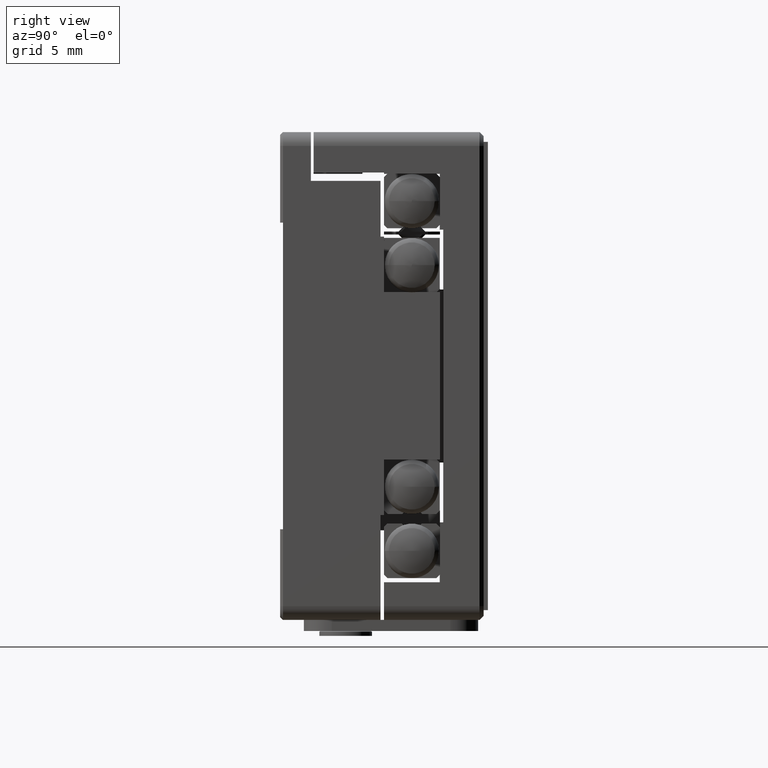
[diagram: clean part render]
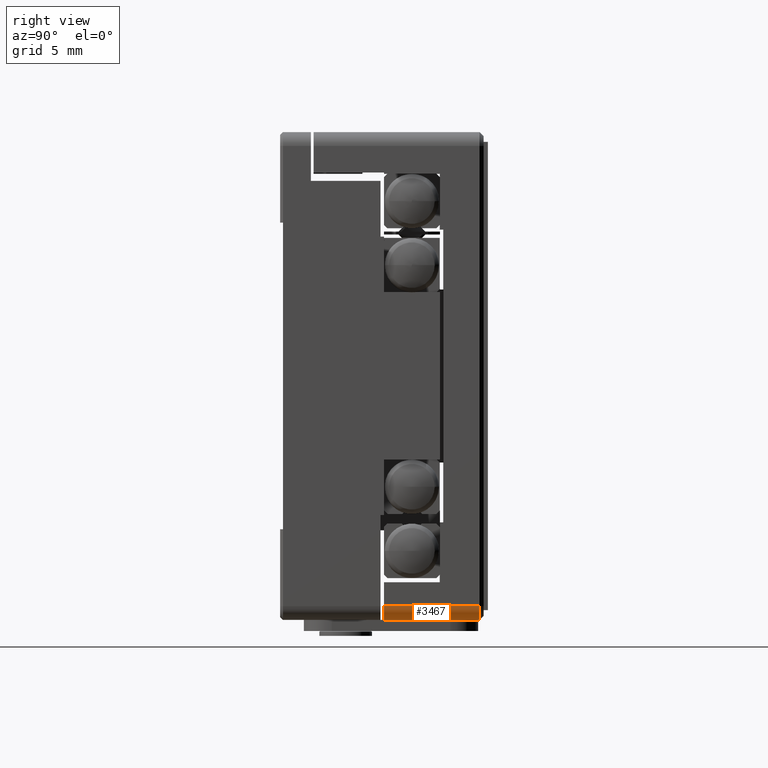
[diagram: same view with one face highlighted and labeled with its STEP entity id]
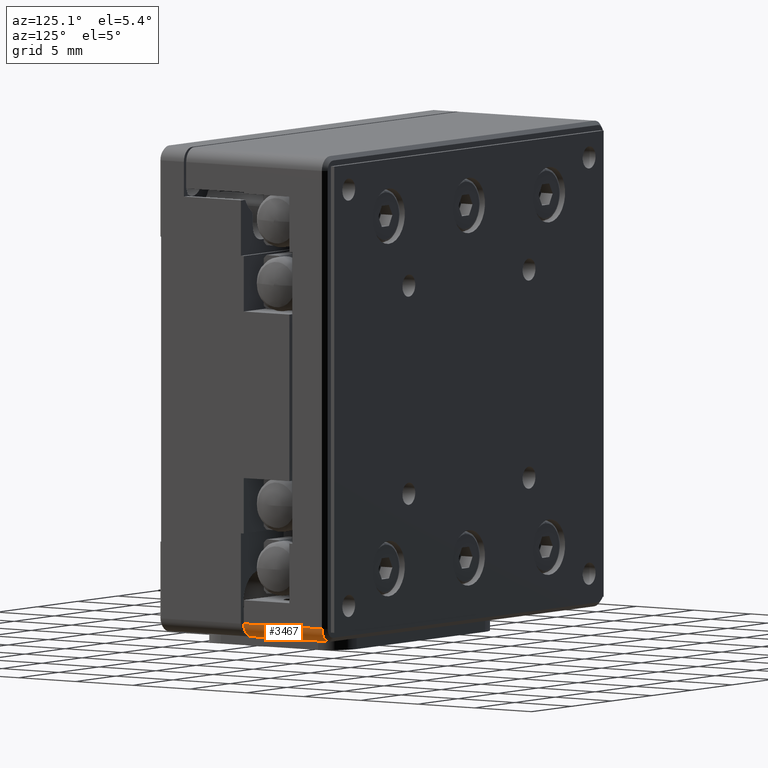
[diagram: same view with one face highlighted and labeled with its STEP entity id]
A machine part, right view. The second image highlights one B-rep face of the part: STEP entity #3467.
A second angle (auxiliary view) of the same face is appended — the face is thin or edge-on in the first view.
In plain terms, the highlighted cylindrical surface (edge-blend (fillet) strip) has radius 1 mm, axis along (0, -1, 0).
Its self-contained STEP definition (entity closure, byte-faithful):
#736 = ORIENTED_EDGE ( 'NONE', *, *, #8315, .F. ) ;
#1075 = VECTOR ( 'NONE', #6742, 1000.000000000000000 ) ;
#2292 = CYLINDRICAL_SURFACE ( 'NONE', #2892, 1.000000000000000888 ) ;
#2892 = AXIS2_PLACEMENT_3D ( 'NONE', #11664, #11874, #7380 ) ;
#3467 = ADVANCED_FACE ( 'NONE', ( #16796 ), #2292, .T. ) ;
#3630 = LINE ( 'NONE', #8325, #1075 ) ;
#4200 = AXIS2_PLACEMENT_3D ( 'NONE', #7006, #13366, #7219 ) ;
#4548 = DIRECTION ( 'NONE',  ( 0.000000000000000000, 1.000000000000000000, -0.000000000000000000 ) ) ;
#5182 = ORIENTED_EDGE ( 'NONE', *, *, #19327, .T. ) ;
#5940 = CARTESIAN_POINT ( 'NONE',  ( 16.50000000000000000, 7.450000000000000178, -17.50000000000000000 ) ) ;
#6255 = LINE ( 'NONE', #17346, #8234 ) ;
#6742 = DIRECTION ( 'NONE',  ( 0.000000000000000000, 1.000000000000000000, 0.000000000000000000 ) ) ;
#7006 = CARTESIAN_POINT ( 'NONE',  ( 16.50000000000000000, 14.29999999999154170, -16.50000000000000000 ) ) ;
#7219 = DIRECTION ( 'NONE',  ( 0.000000000000000000, 0.000000000000000000, -1.000000000000000000 ) ) ;
#7380 = DIRECTION ( 'NONE',  ( 0.000000000000000000, 0.000000000000000000, -1.000000000000000000 ) ) ;
#8010 = CARTESIAN_POINT ( 'NONE',  ( 16.50000000000000000, 14.30000000002922711, -17.49999999999003464 ) ) ;
#8234 = VECTOR ( 'NONE', #9281, 1000.000000000000000 ) ;
#8315 = EDGE_CURVE ( 'NONE', #17229, #14901, #3630, .T. ) ;
#8325 = CARTESIAN_POINT ( 'NONE',  ( 17.50000000000000000, 0.000000000000000000, -16.50000000000000000 ) ) ;
#8474 = VERTEX_POINT ( 'NONE', #8010 ) ;
#9124 = CARTESIAN_POINT ( 'NONE',  ( 16.50000000000000000, 7.450000000000000178, -16.50000000000000000 ) ) ;
#9281 = DIRECTION ( 'NONE',  ( -0.000000000000000000, 1.000000000000000000, 0.000000000000000000 ) ) ;
#11664 = CARTESIAN_POINT ( 'NONE',  ( 16.50000000000000000, 0.000000000000000000, -16.50000000000000000 ) ) ;
#11874 = DIRECTION ( 'NONE',  ( -0.000000000000000000, -1.000000000000000000, 0.000000000000000000 ) ) ;
#11962 = EDGE_LOOP ( 'NONE', ( #5182, #20297, #736, #16360 ) ) ;
#13162 = AXIS2_PLACEMENT_3D ( 'NONE', #9124, #4548, #14133 ) ;
#13366 = DIRECTION ( 'NONE',  ( -0.000000000000000000, 1.000000000000000000, -0.000000000000000000 ) ) ;
#14133 = DIRECTION ( 'NONE',  ( 0.000000000000000000, 0.000000000000000000, -1.000000000000000000 ) ) ;
#14187 = CIRCLE ( 'NONE', #13162, 1.000000000000000888 ) ;
#14692 = CARTESIAN_POINT ( 'NONE',  ( 17.50000000000000000, 7.450000000000000178, -16.50000000000000000 ) ) ;
#14901 = VERTEX_POINT ( 'NONE', #18261 ) ;
#16360 = ORIENTED_EDGE ( 'NONE', *, *, #19631, .T. ) ;
#16796 = FACE_OUTER_BOUND ( 'NONE', #11962, .T. ) ;
#17229 = VERTEX_POINT ( 'NONE', #14692 ) ;
#17346 = CARTESIAN_POINT ( 'NONE',  ( 16.50000000000000000, 7.450000000000000178, -17.50000000000000000 ) ) ;
#18251 = CIRCLE ( 'NONE', #4200, 1.000000000040926373 ) ;
#18261 = CARTESIAN_POINT ( 'NONE',  ( 17.50000000001177725, 14.29999999999634319, -16.50000000000000711 ) ) ;
#19195 = VERTEX_POINT ( 'NONE', #5940 ) ;
#19327 = EDGE_CURVE ( 'NONE', #19195, #8474, #6255, .T. ) ;
#19631 = EDGE_CURVE ( 'NONE', #17229, #19195, #14187, .T. ) ;
#19952 = EDGE_CURVE ( 'NONE', #14901, #8474, #18251, .T. ) ;
#20297 = ORIENTED_EDGE ( 'NONE', *, *, #19952, .F. ) ;